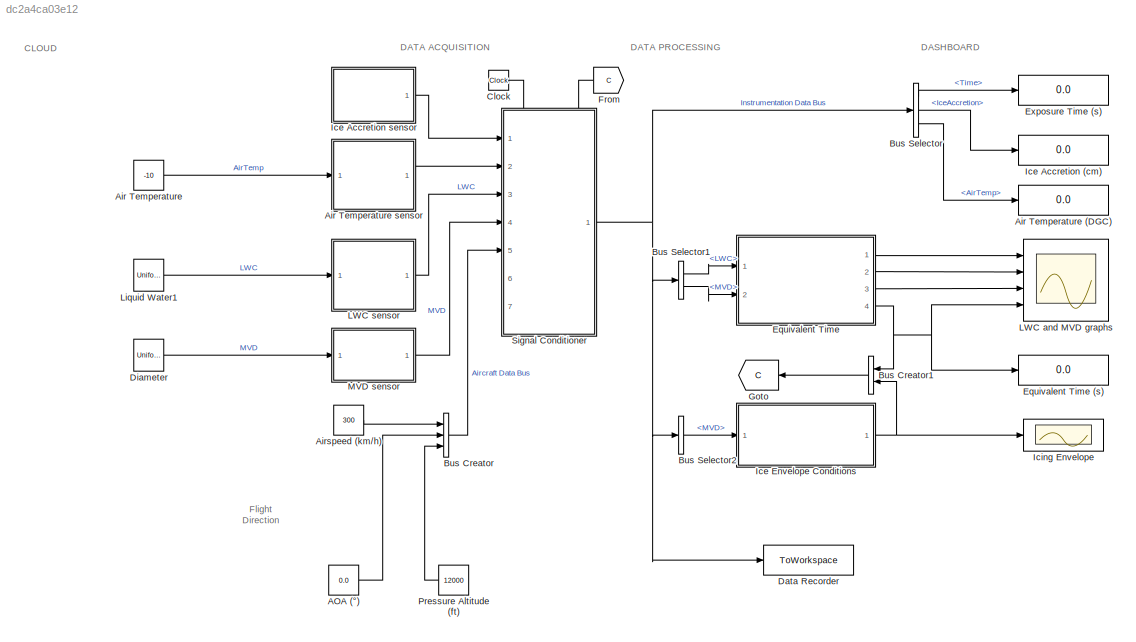
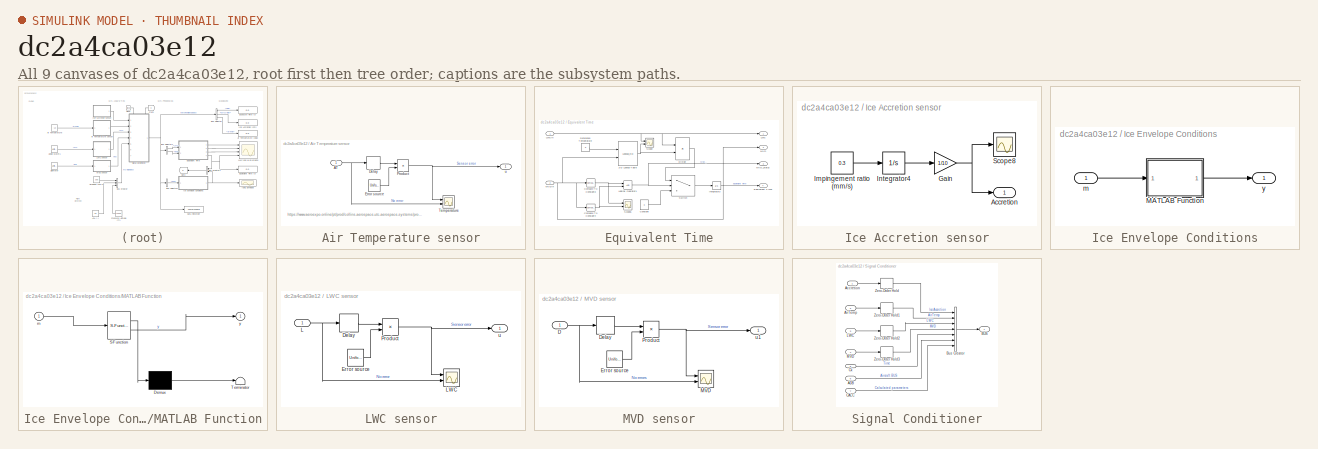
[diagram: thumbnail index - all 9 canvases of the model, root first then tree order]
MODEL slx_dc2a4ca03e12
KIND model
CONFIG AbsTol = auto
CONFIG EnableMultiTasking = off
CONFIG FixedStep = auto
CONFIG MaxStep = 0.1
CONFIG MinStep = auto
CONFIG RelTol = 1e-6
CONFIG SampleTimeConstraint = Unconstrained
CONFIG SolverName = ode23tb
CONFIG StartTime = 0.0
CONFIG StopTime = 360
BLOCK [Constant] AOA (°)
  Value = 0.0
BLOCK [Constant] Air Temperature
  Value = -10
BLOCK [Display] Air Temperature (DGC)
  Decimation = 1
  Ports = [1]
BLOCK [SubSystem] Air Temperature sensor
  Ports = [1, 1]
  RequestExecContextInheritance = off
BLOCK [Inport] Air Temperature sensor/AT
BLOCK [Delay] Air Temperature sensor/Delay
  DelayLength = 1
  InputPortMap = u0
  Ports = [1, 1]
BLOCK [UniformRandomNumber] Air Temperature sensor/Error source
  Maximum = 1.1
  Minimum = 0.95
  SampleTime = 0.1
  Seed = 1
BLOCK [Product] Air Temperature sensor/Product
  Ports = [2, 1]
BLOCK [Scope] Air Temperature sensor/Temperature
  Floating = off
  NumInputPorts = 2
  Ports = [2]
  ScopeSpecificationString = Simulink.scopes.TimeScopeBlockCfg('CurrentConfiguration', extmgr.ConfigurationSet(extmgr.Configuration('Core','General UI',true),extmgr.Configuration('Core','Source UI',true),extmgr.Configuration('Sources','WiredSimulink',true,'DataLoggingVariableName','ScopeData5'),extmgr.Configuration('Visuals','Time Domain',true,'SerializedDisplays',{struct('MinYLimReal','-11.98004','MaxYLimReal','-8.04687','YL...<+2052ch>
BLOCK [Outport] Air Temperature sensor/u
BLOCK [Constant] Airspeed (km//h)
  Value = 300
BLOCK [BusCreator] Bus Creator
  DisplayOption = bar
  InheritFromInputs = on
  Inputs = 3
  Ports = [3, 1]
BLOCK [BusCreator] Bus Creator1
  DisplayOption = bar
  InheritFromInputs = on
  Inputs = 2
  Ports = [2, 1]
BLOCK [BusSelector] Bus Selector
  OutputSignals = Time,IceAccretion,AirTemp
  Ports = [1, 3]
BLOCK [BusSelector] Bus Selector1
  OutputSignals = LWC,MVD
  Ports = [1, 2]
BLOCK [BusSelector] Bus Selector2
  OutputSignals = MVD
  Ports = [1, 1]
BLOCK [Clock] Clock
BLOCK [ToWorkspace] Data Recorder
  FixptAsFi = on
  MaxDataPoints = inf
  Ports = [1]
  SampleTime = 1
  Save2DSignal = 2-D array (concatenate along first dimension)
  VariableName = simout
BLOCK [UniformRandomNumber] Diameter
  Maximum = 51
  Minimum = 0
  SampleTime = 0.5
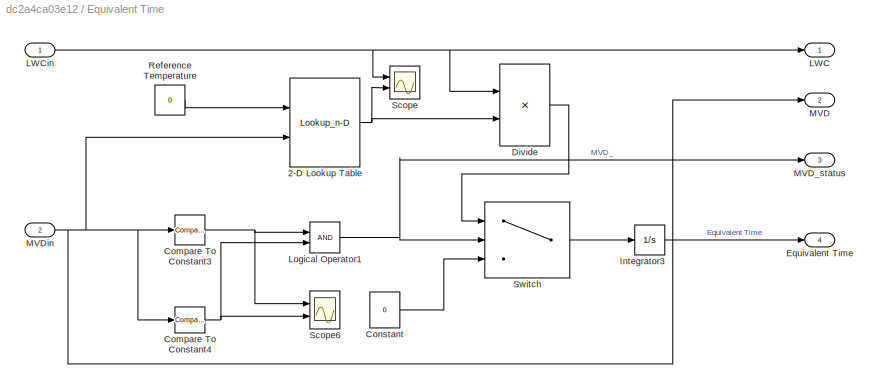
BLOCK [SubSystem] Equivalent Time
  Ports = [2, 4]
  RequestExecContextInheritance = off
BLOCK [Display] Equivalent Time (s)
  Decimation = 1
  Ports = [1]
BLOCK [Lookup_n-D] Equivalent Time/2-D Lookup Table
  BreakpointsForDimension1 = [0 10 20 30]
  BreakpointsForDimension2 = [15 25 30 40]
  InputPortMap = u0,u1
  InternalRulePriority = Speed
  Ports = [2, 1]
  RndMeth = Simplest
  Table = [0.8 0.5 0.375 0.155; 0.59 0.3 0.22 0.1; 0.3 0.15 0.11 0.6; 0.2 0.1 0.1 0.04]
BLOCK [Reference] Equivalent Time/Compare To Constant3  REF=simulink/Logic and Bit
Operations/Compare
To Constant
  Ports = [1, 1]
  SourceBlock = simulink/Logic and Bit\nOperations/Compare\nTo Constant
  SourceProductBaseCode = SL
  SourceType = Compare To Constant
BLOCK [Reference] Equivalent Time/Compare To Constant4  REF=simulink/Logic and Bit
Operations/Compare
To Constant
  Ports = [1, 1]
  SourceBlock = simulink/Logic and Bit\nOperations/Compare\nTo Constant
  SourceProductBaseCode = SL
  SourceType = Compare To Constant
BLOCK [Constant] Equivalent Time/Constant
  Value = 0
BLOCK [Product] Equivalent Time/Divide
  Inputs = */
  NameLocation = top
  Ports = [2, 1]
BLOCK [Outport] Equivalent Time/Equivalent Time
  Port = 4
BLOCK [Integrator] Equivalent Time/Integrator3
  Ports = [1, 1]
BLOCK [Outport] Equivalent Time/LWC
BLOCK [Inport] Equivalent Time/LWCin
BLOCK [Logic] Equivalent Time/Logical Operator1
  AllPortsSameDT = off
  OutDataTypeStr = boolean
  Ports = [2, 1]
BLOCK [Outport] Equivalent Time/MVD
  Port = 2
BLOCK [Outport] Equivalent Time/MVD_status
  Port = 3
BLOCK [Inport] Equivalent Time/MVDin
  Port = 2
BLOCK [Constant] Equivalent Time/Reference Temperature
  Value = 0
BLOCK [Scope] Equivalent Time/Scope
  Floating = off
  NumInputPorts = 2
  Ports = [2]
  ScopeSpecificationString = Simulink.scopes.TimeScopeBlockCfg('CurrentConfiguration', extmgr.ConfigurationSet(extmgr.Configuration('Core','General UI',true),extmgr.Configuration('Core','Source UI',true),extmgr.Configuration('Sources','WiredSimulink',true,'DataLoggingVariableName','ScopeData1'),extmgr.Configuration('Visuals','Time Domain',true,'SerializedDisplays',{struct('MinYLimReal','-0.2353','MaxYLimReal','1.40312','YLabe...<+1375ch>
BLOCK [Scope] Equivalent Time/Scope6
  Floating = off
  NumInputPorts = 2
  Ports = [2]
  ScopeSpecificationString = Simulink.scopes.TimeScopeBlockCfg('CurrentConfiguration', extmgr.ConfigurationSet(extmgr.Configuration('Core','General UI',true),extmgr.Configuration('Core','Source UI',true),extmgr.Configuration('Sources','WiredSimulink',true,'DataLoggingVariableName','ScopeData3'),extmgr.Configuration('Visuals','Time Domain',true,'SerializedDisplays',{struct('MinYLimReal','-0.125','MaxYLimReal','1.125','YLabelRe...<+1421ch>
BLOCK [Switch] Equivalent Time/Switch
  Criteria = u2 > Threshold
  InputSameDT = off
  SaturateOnIntegerOverflow = off
BLOCK [Display] Exposure Time (s)
  Decimation = 1
  Ports = [1]
BLOCK [From] From
  GotoTag = C
BLOCK [Goto] Goto
  GotoTag = C
BLOCK [Display] Ice Accretion (cm)
  Decimation = 1
  Ports = [1]
BLOCK [SubSystem] Ice Accretion sensor
  Ports = [0, 1]
  RequestExecContextInheritance = off
BLOCK [Outport] Ice Accretion sensor/Accretion
BLOCK [Gain] Ice Accretion sensor/Gain
  Gain = 1/10
BLOCK [Constant] Ice Accretion sensor/Impingement ratio (mm//s)
  Value = 0.3
BLOCK [Integrator] Ice Accretion sensor/Integrator4
  Ports = [1, 1]
BLOCK [Scope] Ice Accretion sensor/Scope8
  Floating = off
  NumInputPorts = 1
  Ports = [1]
  ScopeSpecificationString = Simulink.scopes.TimeScopeBlockCfg('CurrentConfiguration', extmgr.ConfigurationSet(extmgr.Configuration('Core','General UI',true),extmgr.Configuration('Core','Source UI',true),extmgr.Configuration('Sources','WiredSimulink',true,'DataLoggingVariableName','ScopeData1'),extmgr.Configuration('Visuals','Time Domain',true,'SerializedDisplays',{struct('MinYLimReal','-0.125','MaxYLimReal','1.125','YLabelRe...<+1351ch>
BLOCK [SubSystem] Ice Envelope Conditions
  Ports = [1, 1]
  RequestExecContextInheritance = off
BLOCK [SubSystem] Ice Envelope Conditions/MATLAB Function
  ErrorFcn = Stateflow.Translate.translate
  PermitHierarchicalResolution = ExplicitOnly
  Ports = [1, 1]
  RequestExecContextInheritance = off
  SFBlockType = MATLAB Function
  TreatAsAtomicUnit = on
BLOCK [Demux] Ice Envelope Conditions/MATLAB Function/ Demux 
  Outputs = 1
  Ports = [1, 1]
BLOCK [S-Function] Ice Envelope Conditions/MATLAB Function/ SFunction 
  EnableBusSupport = on
  FunctionName = sf_sfun
  PortCounts = [1 2]
  Ports = [1, 2]
  SFcnIsStateOwnerBlock = off
  SFunctionDeploymentMode = off
  Tag = Stateflow S-Function 2
BLOCK [Terminator] Ice Envelope Conditions/MATLAB Function/ Terminator 
BLOCK [Inport] Ice Envelope Conditions/MATLAB Function/m
BLOCK [Outport] Ice Envelope Conditions/MATLAB Function/y
BLOCK [Inport] Ice Envelope Conditions/m
BLOCK [Outport] Ice Envelope Conditions/y
BLOCK [Scope] Icing Envelope
  Floating = off
  NumInputPorts = 1
  Ports = [1]
  ScopeSpecificationString = Simulink.scopes.TimeScopeBlockCfg('CurrentConfiguration', extmgr.ConfigurationSet(extmgr.Configuration('Core','General UI',true),extmgr.Configuration('Core','Source UI',true),extmgr.Configuration('Sources','WiredSimulink',true,'DataLoggingVariableName','ScopeData1'),extmgr.Configuration('Visuals','Time Domain',true,'SerializedDisplays',{struct('MinYLimReal','-0.125','MaxYLimReal','1.125','YLabelRe...<+1370ch>
BLOCK [Scope] LWC and MVD graphs
  Floating = off
  NumInputPorts = 4
  Ports = [4]
  ScopeSpecificationString = Simulink.scopes.TimeScopeBlockCfg('CurrentConfiguration', extmgr.ConfigurationSet(extmgr.Configuration('Core','General UI',true,'FigureColor',[0.8 0.8 0.8]),extmgr.Configuration('Core','Source UI',true),extmgr.Configuration('Sources','WiredSimulink',true,'SampleTime','0.1'),extmgr.Configuration('Visuals','Time Domain',true,'SerializedDisplays',{struct('MinYLimReal','-0.09352','MaxYLimReal','0.8417...<+4097ch>
BLOCK [SubSystem] LWC sensor
  Ports = [1, 1]
  RequestExecContextInheritance = off
BLOCK [Delay] LWC sensor/Delay
  DelayLength = 1
  InputPortMap = u0
  Ports = [1, 1]
BLOCK [UniformRandomNumber] LWC sensor/Error source
  Maximum = 1.1
  Minimum = 0.9
  SampleTime = 0.1
  Seed = 1
BLOCK [Inport] LWC sensor/L
BLOCK [Scope] LWC sensor/LWC
  Floating = off
  NumInputPorts = 2
  Ports = [2]
  ScopeSpecificationString = Simulink.scopes.TimeScopeBlockCfg('CurrentConfiguration', extmgr.ConfigurationSet(extmgr.Configuration('Core','General UI',true),extmgr.Configuration('Core','Source UI',true),extmgr.Configuration('Sources','WiredSimulink',true,'DataLoggingVariableName','ScopeData5','SampleTime','1'),extmgr.Configuration('Visuals','Time Domain',true,'SerializedDisplays',{struct('MinYLimReal','-0.09352','MaxYLimReal...<+1422ch>
BLOCK [Product] LWC sensor/Product
  Ports = [2, 1]
BLOCK [Outport] LWC sensor/u
BLOCK [UniformRandomNumber] Liquid Water1
  Maximum = 0.7
  Minimum = 0.1
  SampleTime = 0.1
BLOCK [SubSystem] MVD sensor
  Ports = [1, 1]
  RequestExecContextInheritance = off
BLOCK [Inport] MVD sensor/D
BLOCK [Delay] MVD sensor/Delay
  InputPortMap = u0
  Ports = [1, 1]
BLOCK [UniformRandomNumber] MVD sensor/Error source
  Maximum = 1.1
  Minimum = 0.9
  SampleTime = 0.1
  Seed = 1
BLOCK [Scope] MVD sensor/MVD
  Floating = off
  NumInputPorts = 2
  Ports = [2]
  ScopeSpecificationString = Simulink.scopes.TimeScopeBlockCfg('CurrentConfiguration', extmgr.ConfigurationSet(extmgr.Configuration('Core','General UI',true),extmgr.Configuration('Core','Source UI',true),extmgr.Configuration('Sources','WiredSimulink',true,'DataLoggingVariableName','ScopeData4','SampleTime','1'),extmgr.Configuration('Visuals','Time Domain',true,'SerializedDisplays',{struct('MinYLimReal','-6.67154','MaxYLimReal...<+1431ch>
BLOCK [Product] MVD sensor/Product
  Ports = [2, 1]
BLOCK [Outport] MVD sensor/u1
BLOCK [Constant] Pressure Altitude (ft)
  Value = 12000
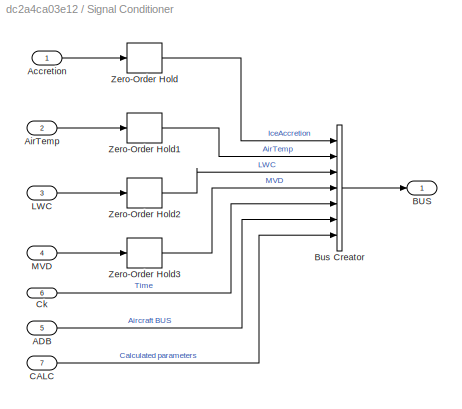
BLOCK [SubSystem] Signal Conditioner
  PortSchema = {"entries":[{"content":{"sides":[{"content":{"connectorIds":["In1","In2","In3","In4","In5"]},"type":"ConnectorPlacement.EquallySpacedRectSide","uuid":"37654887-8b06-403a-8d28-0bf4ed0ace53"},{"content":{"connectorIds":["Out1"],"side":"RIGHT"},"type":"ConnectorPlacement.EquallySpacedRectSide","uuid":"06b92d83-e4db-41b5-b404-488771456c30"},{"content":{"connectorIds":["In6","In7"],"side":"TOP"},"type"...<+275ch>
  Ports = [7, 1]
  RequestExecContextInheritance = off
BLOCK [Inport] Signal Conditioner/ADB
  Port = 5
BLOCK [Inport] Signal Conditioner/Accretion
BLOCK [Inport] Signal Conditioner/AirTemp
  Port = 2
BLOCK [Outport] Signal Conditioner/BUS
BLOCK [BusCreator] Signal Conditioner/Bus Creator
  DisplayOption = bar
  InheritFromInputs = on
  Inputs = 7
  Ports = [7, 1]
BLOCK [Inport] Signal Conditioner/CALC
  Port = 7
BLOCK [Inport] Signal Conditioner/Ck
  Port = 6
BLOCK [Inport] Signal Conditioner/LWC
  Port = 3
BLOCK [Inport] Signal Conditioner/MVD
  Port = 4
BLOCK [ZeroOrderHold] Signal Conditioner/Zero-Order Hold
  SampleTime = 0.1
BLOCK [ZeroOrderHold] Signal Conditioner/Zero-Order Hold1
  SampleTime = 0.1
BLOCK [ZeroOrderHold] Signal Conditioner/Zero-Order Hold2
  SampleTime = 0.1
BLOCK [ZeroOrderHold] Signal Conditioner/Zero-Order Hold3
  SampleTime = 0.1
ANNOTATION (root): Flight Direction
ANNOTATION (root): CLOUD
ANNOTATION (root): DASHBOARD
ANNOTATION (root): DATA ACQUISITION
ANNOTATION (root): DATA PROCESSING
ANNOTATION Air Temperature sensor: https://www.aeroexpo.online/pt/prod/collins-aerospace-utc-aerospace-systems/product-170790-62976.html
LINE AOA (°):1 -> Bus Creator:2
NET Air Temperature sensor/AT:1 -> Air Temperature sensor/Delay:1, Air Temperature sensor/Temperature:2
LINE Air Temperature sensor/Delay:1 -> Air Temperature sensor/Product:1
LINE Air Temperature sensor/Error source:1 -> Air Temperature sensor/Product:2
NET Air Temperature sensor/Product:1 -> Air Temperature sensor/Temperature:1, Air Temperature sensor/u:1
LINE Air Temperature sensor:1 -> Signal Conditioner:2
LINE Air Temperature:1 -> Air Temperature sensor:1
LINE Airspeed (km//h):1 -> Bus Creator:1
LINE Bus Creator1:1 -> Goto:1
LINE Bus Creator:1 -> Signal Conditioner:5
LINE Bus Selector1:1 -> Equivalent Time:1
LINE Bus Selector1:2 -> Equivalent Time:2
LINE Bus Selector2:1 -> Ice Envelope Conditions:1
LINE Bus Selector:1 -> Exposure Time (s):1
LINE Bus Selector:2 -> Ice Accretion (cm):1
LINE Bus Selector:3 -> Air Temperature (DGC):1
LINE Clock:1 -> Signal Conditioner:6
LINE Diameter:1 -> MVD sensor:1
NET Equivalent Time/2-D Lookup Table:1 -> Equivalent Time/Divide:2, Equivalent Time/Scope:2
NET Equivalent Time/Compare To Constant3:1 -> Equivalent Time/Logical Operator1:1, Equivalent Time/Scope6:1
NET Equivalent Time/Compare To Constant4:1 -> Equivalent Time/Logical Operator1:2, Equivalent Time/Scope6:2
LINE Equivalent Time/Constant:1 -> Equivalent Time/Switch:3
LINE Equivalent Time/Divide:1 -> Equivalent Time/Switch:1
LINE Equivalent Time/Integrator3:1 -> Equivalent Time/Equivalent Time:1
NET Equivalent Time/LWCin:1 -> Equivalent Time/Divide:1, Equivalent Time/LWC:1, Equivalent Time/Scope:1
NET Equivalent Time/Logical Operator1:1 -> Equivalent Time/MVD_status:1, Equivalent Time/Switch:2
NET Equivalent Time/MVDin:1 -> Equivalent Time/2-D Lookup Table:2, Equivalent Time/Compare To Constant3:1, Equivalent Time/Compare To Constant4:1, Equivalent Time/MVD:1
LINE Equivalent Time/Reference Temperature:1 -> Equivalent Time/2-D Lookup Table:1
LINE Equivalent Time/Switch:1 -> Equivalent Time/Integrator3:1
LINE Equivalent Time:1 -> LWC and MVD graphs:1
LINE Equivalent Time:2 -> LWC and MVD graphs:2
LINE Equivalent Time:3 -> LWC and MVD graphs:3
NET Equivalent Time:4 -> Bus Creator1:1, Equivalent Time (s):1, LWC and MVD graphs:4
LINE From:1 -> Signal Conditioner:7
NET Ice Accretion sensor/Gain:1 -> Ice Accretion sensor/Accretion:1, Ice Accretion sensor/Scope8:1
LINE Ice Accretion sensor/Impingement ratio (mm//s):1 -> Ice Accretion sensor/Integrator4:1
LINE Ice Accretion sensor/Integrator4:1 -> Ice Accretion sensor/Gain:1
LINE Ice Accretion sensor:1 -> Signal Conditioner:1
LINE Ice Envelope Conditions/MATLAB Function:1 -> Ice Envelope Conditions/y:1
LINE Ice Envelope Conditions/m:1 -> Ice Envelope Conditions/MATLAB Function:1
NET Ice Envelope Conditions:1 -> Bus Creator1:2, Icing Envelope:1
LINE LWC sensor/Delay:1 -> LWC sensor/Product:1
LINE LWC sensor/Error source:1 -> LWC sensor/Product:2
NET LWC sensor/L:1 -> LWC sensor/Delay:1, LWC sensor/LWC:2
NET LWC sensor/Product:1 -> LWC sensor/LWC:1, LWC sensor/u:1
LINE LWC sensor:1 -> Signal Conditioner:3
LINE Liquid Water1:1 -> LWC sensor:1
NET MVD sensor/D:1 -> MVD sensor/Delay:1, MVD sensor/MVD:2
LINE MVD sensor/Delay:1 -> MVD sensor/Product:1
LINE MVD sensor/Error source:1 -> MVD sensor/Product:2
NET MVD sensor/Product:1 -> MVD sensor/MVD:1, MVD sensor/u1:1
LINE MVD sensor:1 -> Signal Conditioner:4
LINE Pressure Altitude (ft):1 -> Bus Creator:3
LINE Signal Conditioner/ADB:1 -> Signal Conditioner/Bus Creator:6
LINE Signal Conditioner/Accretion:1 -> Signal Conditioner/Zero-Order Hold:1
LINE Signal Conditioner/AirTemp:1 -> Signal Conditioner/Zero-Order Hold1:1
LINE Signal Conditioner/Bus Creator:1 -> Signal Conditioner/BUS:1
LINE Signal Conditioner/CALC:1 -> Signal Conditioner/Bus Creator:7
LINE Signal Conditioner/Ck:1 -> Signal Conditioner/Bus Creator:5
LINE Signal Conditioner/LWC:1 -> Signal Conditioner/Zero-Order Hold2:1
LINE Signal Conditioner/MVD:1 -> Signal Conditioner/Zero-Order Hold3:1
LINE Signal Conditioner/Zero-Order Hold1:1 -> Signal Conditioner/Bus Creator:2
LINE Signal Conditioner/Zero-Order Hold2:1 -> Signal Conditioner/Bus Creator:3
LINE Signal Conditioner/Zero-Order Hold3:1 -> Signal Conditioner/Bus Creator:4
LINE Signal Conditioner/Zero-Order Hold:1 -> Signal Conditioner/Bus Creator:1
NET Signal Conditioner:1 -> Bus Selector1:1, Bus Selector2:1, Bus Selector:1, Data Recorder:1
note: NET lines group one-source signal fan-out (src -> all destinations, sorted); 1:1 wires keep LINE
CHART Ice Envelope Conditions/MATLAB Function states=1 transitions=1
  STATE_LABEL 'eML_blk_kernel()'
  STATE_LABEL 'SCRIPT:\nfunction y = fcn(m)\n\nif (m > 500)\n    y = 3;\n    elseif (m > 100) && (m < 500)\n    y = 2;\nelseif (m > 15) && (m < 40)\n        y = 1;\nelse y = 0;\nend\n'
CHART  states=0 transitions=0
